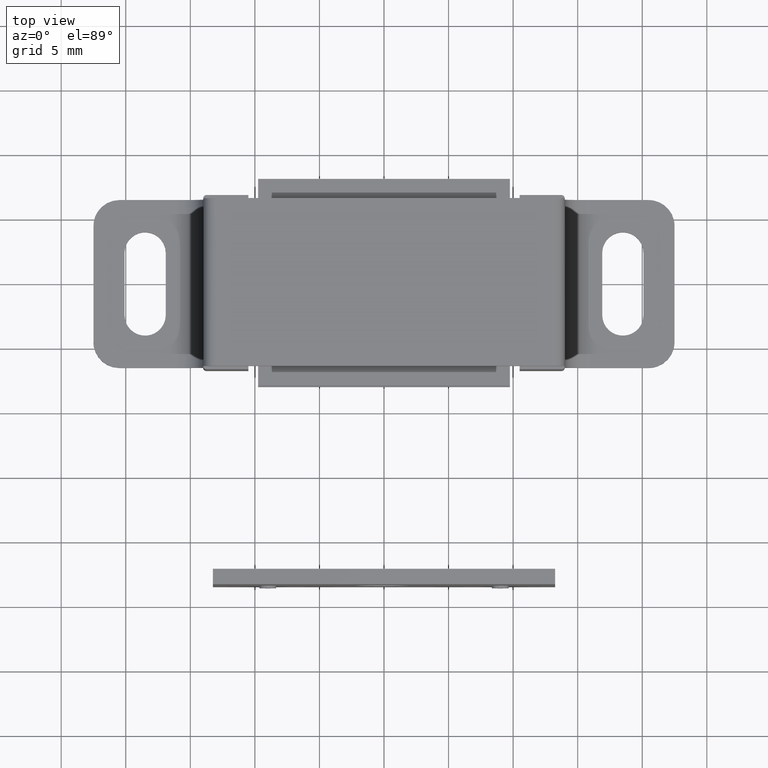
[diagram: clean part render]
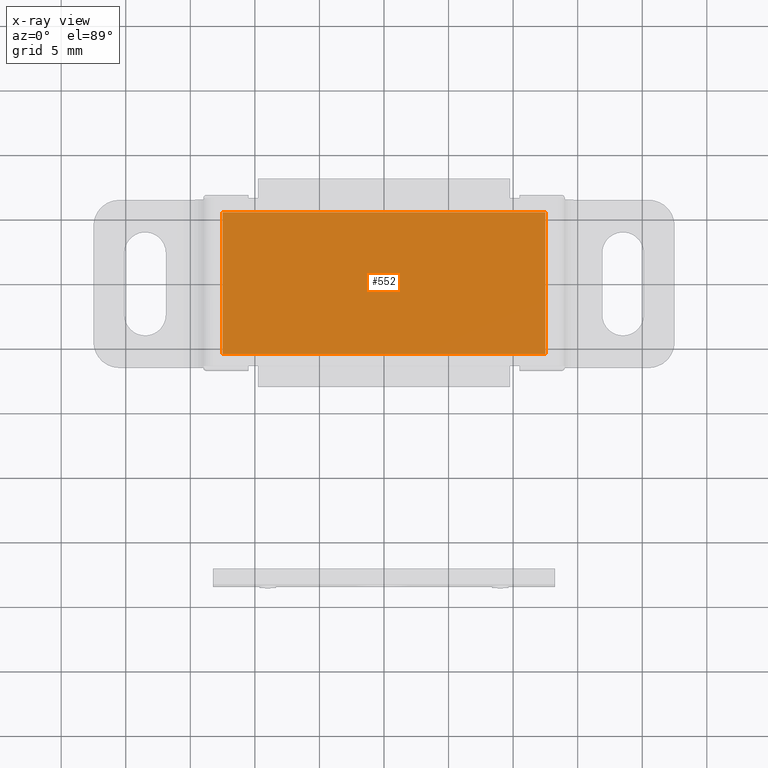
[diagram: x-ray — body ghosted, one internal face saturated and labeled with its STEP entity id]
A machine part, top view, then the same camera in x-ray: the body is ghosted and one INTERNAL B-rep face — a face not visible from any outside direction — is saturated and labeled: STEP entity #552.
In plain terms, the highlighted face is a freeform B-spline surface patch.
Its self-contained STEP definition (entity closure, byte-faithful):
#466=CARTESIAN_POINT('',(12.500000000000000,-5.500000000000000,3.400009000000000));
#467=VERTEX_POINT('',#466);
#482=CARTESIAN_POINT('',(-12.500000000000000,-5.500000000000000,3.400009000000000));
#483=VERTEX_POINT('',#482);
#489=CARTESIAN_POINT('',(-12.500000000000000,-5.500000000000000,3.400009000000000));
#490=CARTESIAN_POINT('',(12.500000000000000,-5.500000000000000,3.400009000000000));
#491=QUASI_UNIFORM_CURVE('',1,(#489,#490),.UNSPECIFIED.,.F.,.U.);
#492=EDGE_CURVE('',#483,#467,#491,.T.);
#502=CARTESIAN_POINT('',(12.500000000000000,5.500000000000000,3.400009000000000));
#503=VERTEX_POINT('',#502);
#511=CARTESIAN_POINT('',(-12.500000000000000,5.500000000000000,3.400009000000000));
#512=VERTEX_POINT('',#511);
#513=CARTESIAN_POINT('',(-12.500000000000000,5.500000000000000,3.400009000000000));
#514=CARTESIAN_POINT('',(12.500000000000000,5.500000000000000,3.400009000000000));
#515=QUASI_UNIFORM_CURVE('',1,(#513,#514),.UNSPECIFIED.,.F.,.U.);
#516=EDGE_CURVE('',#512,#503,#515,.T.);
#533=CARTESIAN_POINT('',(13.748749951545150,-6.049449978679865,3.400009000000000));
#534=CARTESIAN_POINT('',(-13.748750622097401,-6.049449978679865,3.400009000000000));
#535=CARTESIAN_POINT('',(13.748749951545150,6.049450273722857,3.400009000000000));
#536=CARTESIAN_POINT('',(-13.748750622097401,6.049450273722857,3.400009000000000));
#537=B_SPLINE_SURFACE_WITH_KNOTS('',1,1,((#533,#535),(#534,#536)),.UNSPECIFIED.,.F.,.F.,.U.,(2,2),(2,2),(0.0,27.497500573642551),(0.0,12.098900252402720),.UNSPECIFIED.);
#538=ORIENTED_EDGE('',*,*,#492,.F.);
#539=CARTESIAN_POINT('',(-12.500000000000000,5.500000000000000,3.400009000000000));
#540=CARTESIAN_POINT('',(-12.500000000000000,-5.500000000000000,3.400009000000000));
#541=QUASI_UNIFORM_CURVE('',1,(#539,#540),.UNSPECIFIED.,.F.,.U.);
#542=EDGE_CURVE('',#512,#483,#541,.T.);
#543=ORIENTED_EDGE('',*,*,#542,.F.);
#544=ORIENTED_EDGE('',*,*,#516,.T.);
#545=CARTESIAN_POINT('',(12.500000000000000,5.500000000000000,3.400009000000000));
#546=CARTESIAN_POINT('',(12.500000000000000,-5.500000000000000,3.400009000000000));
#547=QUASI_UNIFORM_CURVE('',1,(#545,#546),.UNSPECIFIED.,.F.,.U.);
#548=EDGE_CURVE('',#503,#467,#547,.T.);
#549=ORIENTED_EDGE('',*,*,#548,.T.);
#550=EDGE_LOOP('',(#538,#543,#544,#549));
#551=FACE_OUTER_BOUND('',#550,.T.);
#552=ADVANCED_FACE('',(#551),#537,.T.);